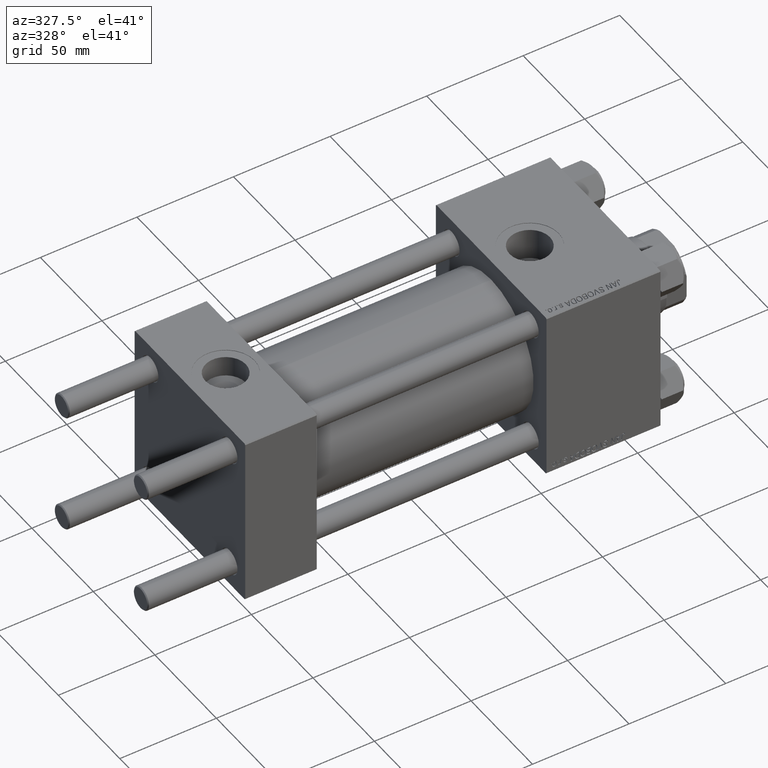
[diagram: clean part render]
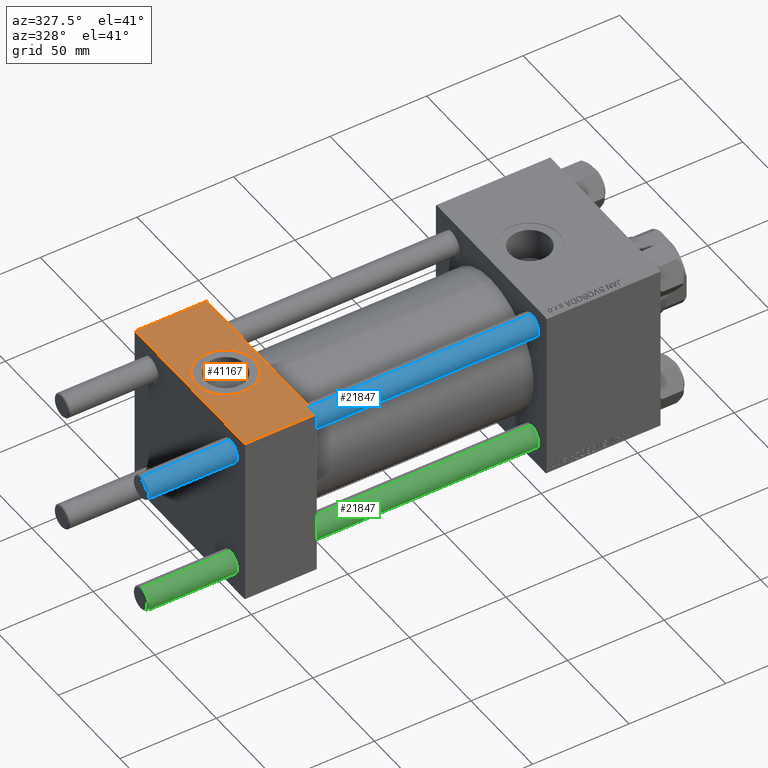
[diagram: same view with three faces highlighted in distinct colors, each labeled with its STEP entity id]
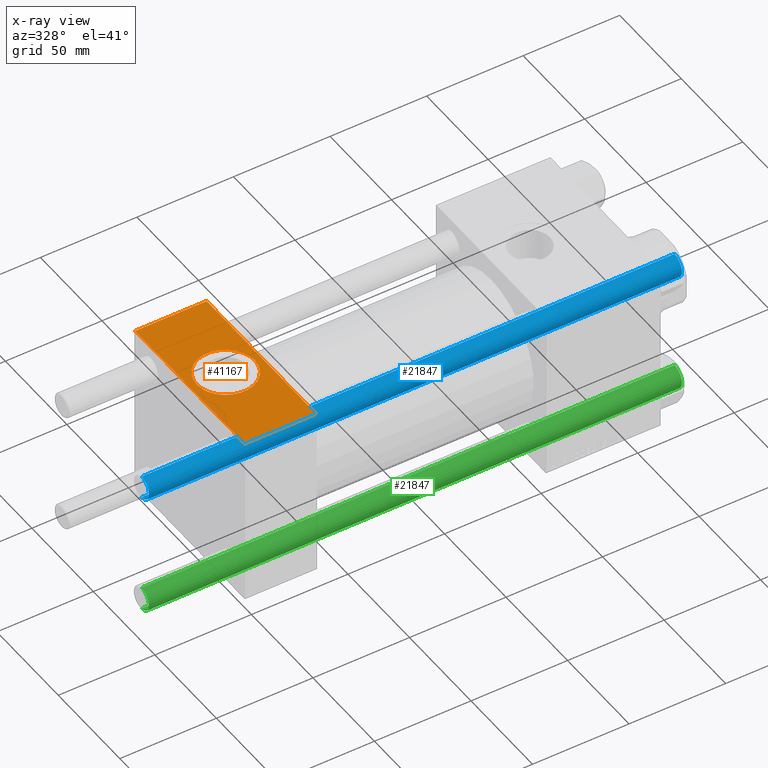
[diagram: x-ray of the same camera — body ghosted, the three highlighted faces saturated]
A machine part, auxiliary view with three faces highlighted in distinct colors.
The next image is the same camera in x-ray (body ghosted, the three faces saturated) — at least one of them is partly hidden behind the body in this view.
Their STEP definitions:

[orange] entity #41167 — the highlighted planar face has unit normal (0, 0, -1).
#144 = AXIS2_PLACEMENT_3D ( 'NONE', #27020, #3296, #18704 ) ;
#2220 = EDGE_LOOP ( 'NONE', ( #30842, #44498 ) ) ;
#2631 = ORIENTED_EDGE ( 'NONE', *, *, #30561, .T. ) ;
#3296 = DIRECTION ( 'NONE',  ( 0.000000000000000000, 0.000000000000000000, 1.000000000000000000 ) ) ;
#7054 = CARTESIAN_POINT ( 'NONE',  ( 18.50000000000000000, -8.673617379884038628E-15, 45.00000000000000711 ) ) ;
#8545 = ORIENTED_EDGE ( 'NONE', *, *, #19542, .T. ) ;
#9850 = DIRECTION ( 'NONE',  ( 1.000000000000000000, 0.000000000000000000, 0.000000000000000000 ) ) ;
#10389 = VERTEX_POINT ( 'NONE', #10992 ) ;
#10497 = CARTESIAN_POINT ( 'NONE',  ( 37.00000000000000000, 44.99999999999998579, 45.00000000000001421 ) ) ;
#10992 = CARTESIAN_POINT ( 'NONE',  ( 3.499999999999997780, -6.836647181163008250E-15, 45.00000000000000711 ) ) ;
#11816 = AXIS2_PLACEMENT_3D ( 'NONE', #7054, #25995, #9850 ) ;
#13613 = VERTEX_POINT ( 'NONE', #48949 ) ;
#13982 = VERTEX_POINT ( 'NONE', #26641 ) ;
#14683 = DIRECTION ( 'NONE',  ( 0.000000000000000000, -1.000000000000000000, -1.541976423090495387E-16 ) ) ;
#15454 = LINE ( 'NONE', #49820, #15876 ) ;
#15726 = PLANE ( 'NONE',  #31050 ) ;
#15876 = VECTOR ( 'NONE', #38929, 1000.000000000000000 ) ;
#16370 = CARTESIAN_POINT ( 'NONE',  ( 33.50000000000000000, -8.673617379884038628E-15, 45.00000000000000711 ) ) ;
#18286 = CARTESIAN_POINT ( 'NONE',  ( 37.00000000000000000, 44.49999999999998579, 45.00000000000001421 ) ) ;
#18704 = DIRECTION ( 'NONE',  ( 1.000000000000000000, 0.000000000000000000, 0.000000000000000000 ) ) ;
#19542 = EDGE_CURVE ( 'NONE', #13982, #13613, #22530, .T. ) ;
#19895 = EDGE_CURVE ( 'NONE', #10389, #38261, #29538, .T. ) ;
#21148 = CARTESIAN_POINT ( 'NONE',  ( 37.00000000000000000, -44.49999999999995737, 45.00000000000000000 ) ) ;
#22236 = CARTESIAN_POINT ( 'NONE',  ( 37.00000000000000000, 44.99999999999998579, 45.00000000000001421 ) ) ;
#22530 = LINE ( 'NONE', #48803, #31177 ) ;
#22847 = ORIENTED_EDGE ( 'NONE', *, *, #46854, .T. ) ;
#23307 = DIRECTION ( 'NONE',  ( 0.000000000000000000, 1.541976423090495633E-16, -1.000000000000000000 ) ) ;
#25902 = FACE_BOUND ( 'NONE', #2220, .T. ) ;
#25995 = DIRECTION ( 'NONE',  ( 0.000000000000000000, 0.000000000000000000, 1.000000000000000000 ) ) ;
#26641 = CARTESIAN_POINT ( 'NONE',  ( 0.000000000000000000, 44.49999999999998579, 45.00000000000001421 ) ) ;
#27020 = CARTESIAN_POINT ( 'NONE',  ( 18.50000000000000000, -8.673617379884038628E-15, 45.00000000000000711 ) ) ;
#28799 = EDGE_CURVE ( 'NONE', #38261, #10389, #44482, .T. ) ;
#29538 = CIRCLE ( 'NONE', #11816, 15.00000000000000355 ) ;
#29834 = EDGE_LOOP ( 'NONE', ( #8545, #2631, #35833, #22847 ) ) ;
#30179 = LINE ( 'NONE', #42555, #46928 ) ;
#30561 = EDGE_CURVE ( 'NONE', #13613, #42733, #30179, .T. ) ;
#30842 = ORIENTED_EDGE ( 'NONE', *, *, #28799, .F. ) ;
#31050 = AXIS2_PLACEMENT_3D ( 'NONE', #10497, #23307, #42744 ) ;
#31177 = VECTOR ( 'NONE', #14683, 1000.000000000000000 ) ;
#35833 = ORIENTED_EDGE ( 'NONE', *, *, #47253, .F. ) ;
#37637 = DIRECTION ( 'NONE',  ( 0.000000000000000000, -1.000000000000000000, -1.541976423090495387E-16 ) ) ;
#38261 = VERTEX_POINT ( 'NONE', #16370 ) ;
#38929 = DIRECTION ( 'NONE',  ( -1.000000000000000000, 0.000000000000000000, 0.000000000000000000 ) ) ;
#41167 = ADVANCED_FACE ( 'NONE', ( #25902, #49400 ), #15726, .F. ) ;
#41421 = LINE ( 'NONE', #22236, #47364 ) ;
#42555 = CARTESIAN_POINT ( 'NONE',  ( 37.00000000000000000, -44.49999999999998579, 45.00000000000000000 ) ) ;
#42733 = VERTEX_POINT ( 'NONE', #21148 ) ;
#42744 = DIRECTION ( 'NONE',  ( 0.000000000000000000, 1.000000000000000000, 1.541976423090495633E-16 ) ) ;
#44482 = CIRCLE ( 'NONE', #144, 15.00000000000000355 ) ;
#44498 = ORIENTED_EDGE ( 'NONE', *, *, #19895, .F. ) ;
#44771 = VERTEX_POINT ( 'NONE', #18286 ) ;
#46596 = DIRECTION ( 'NONE',  ( 1.000000000000000000, 0.000000000000000000, 0.000000000000000000 ) ) ;
#46854 = EDGE_CURVE ( 'NONE', #44771, #13982, #15454, .T. ) ;
#46928 = VECTOR ( 'NONE', #46596, 1000.000000000000000 ) ;
#47253 = EDGE_CURVE ( 'NONE', #44771, #42733, #41421, .T. ) ;
#47364 = VECTOR ( 'NONE', #37637, 1000.000000000000000 ) ;
#48803 = CARTESIAN_POINT ( 'NONE',  ( 0.000000000000000000, 44.99999999999998579, 45.00000000000001421 ) ) ;
#48949 = CARTESIAN_POINT ( 'NONE',  ( 0.000000000000000000, -44.49999999999995737, 45.00000000000000000 ) ) ;
#49400 = FACE_OUTER_BOUND ( 'NONE', #29834, .T. ) ;
#49820 = CARTESIAN_POINT ( 'NONE',  ( 0.000000000000000000, 44.49999999999998579, 45.00000000000001421 ) ) ;

[blue] entity #21847 — the highlighted cylindrical surface (edge-blend (fillet) strip) has radius 6 mm, axis along (1, -0, 0).
#93 = ORIENTED_EDGE ( 'NONE', *, *, #9425, .T. ) ;
#851 = CARTESIAN_POINT ( 'NONE',  ( -6.000000000000000888, 0.000000000000000000, 277.0000000000000000 ) ) ;
#2414 = CARTESIAN_POINT ( 'NONE',  ( 0.000000000000000000, 0.000000000000000000, 0.5000000000000559552 ) ) ;
#3635 = VERTEX_POINT ( 'NONE', #12102 ) ;
#4992 = DIRECTION ( 'NONE',  ( 0.000000000000000000, 0.000000000000000000, -1.000000000000000000 ) ) ;
#5236 = EDGE_LOOP ( 'NONE', ( #93, #28698, #48688, #27755 ) ) ;
#6382 = EDGE_CURVE ( 'NONE', #28541, #3635, #17950, .T. ) ;
#7923 = DIRECTION ( 'NONE',  ( -0.000000000000000000, -0.000000000000000000, -1.000000000000000000 ) ) ;
#8661 = EDGE_CURVE ( 'NONE', #45629, #3635, #12206, .T. ) ;
#8887 = CARTESIAN_POINT ( 'NONE',  ( 6.000000000000000888, 7.347880794884120722E-16, 0.5000000000000559552 ) ) ;
#9425 = EDGE_CURVE ( 'NONE', #45629, #44784, #47886, .T. ) ;
#9501 = DIRECTION ( 'NONE',  ( 1.000000000000000000, 0.000000000000000000, 0.000000000000000000 ) ) ;
#9552 = CARTESIAN_POINT ( 'NONE',  ( 0.000000000000000000, 0.000000000000000000, 276.5000000000000000 ) ) ;
#11751 = CARTESIAN_POINT ( 'NONE',  ( 6.000000000000000888, 7.347880794884120722E-16, 277.0000000000000000 ) ) ;
#11978 = FACE_OUTER_BOUND ( 'NONE', #5236, .T. ) ;
#12102 = CARTESIAN_POINT ( 'NONE',  ( -6.000000000000000888, 0.000000000000000000, 0.5000000000000559552 ) ) ;
#12206 = LINE ( 'NONE', #851, #18021 ) ;
#13327 = CARTESIAN_POINT ( 'NONE',  ( -6.000000000000000888, 0.000000000000000000, 276.5000000000000000 ) ) ;
#14759 = CYLINDRICAL_SURFACE ( 'NONE', #40110, 6.000000000000000888 ) ;
#17950 = CIRCLE ( 'NONE', #21985, 6.000000000000000888 ) ;
#18021 = VECTOR ( 'NONE', #7923, 1000.000000000000000 ) ;
#21847 = ADVANCED_FACE ( 'NONE', ( #11978 ), #14759, .T. ) ;
#21985 = AXIS2_PLACEMENT_3D ( 'NONE', #2414, #40795, #9501 ) ;
#26391 = DIRECTION ( 'NONE',  ( -0.000000000000000000, -0.000000000000000000, -1.000000000000000000 ) ) ;
#26899 = DIRECTION ( 'NONE',  ( -0.000000000000000000, -0.000000000000000000, -1.000000000000000000 ) ) ;
#27755 = ORIENTED_EDGE ( 'NONE', *, *, #8661, .F. ) ;
#28541 = VERTEX_POINT ( 'NONE', #8887 ) ;
#28698 = ORIENTED_EDGE ( 'NONE', *, *, #29017, .T. ) ;
#29017 = EDGE_CURVE ( 'NONE', #44784, #28541, #43068, .T. ) ;
#30173 = CARTESIAN_POINT ( 'NONE',  ( 0.000000000000000000, 0.000000000000000000, 277.0000000000000000 ) ) ;
#34175 = AXIS2_PLACEMENT_3D ( 'NONE', #9552, #4992, #43913 ) ;
#36560 = CARTESIAN_POINT ( 'NONE',  ( 6.000000000000000888, 7.347880794884120722E-16, 276.5000000000000000 ) ) ;
#38001 = DIRECTION ( 'NONE',  ( -1.000000000000000000, 0.000000000000000000, 0.000000000000000000 ) ) ;
#40110 = AXIS2_PLACEMENT_3D ( 'NONE', #30173, #26391, #38001 ) ;
#40795 = DIRECTION ( 'NONE',  ( -0.000000000000000000, -0.000000000000000000, 1.000000000000000000 ) ) ;
#43068 = LINE ( 'NONE', #11751, #49308 ) ;
#43913 = DIRECTION ( 'NONE',  ( 1.000000000000000000, 0.000000000000000000, 0.000000000000000000 ) ) ;
#44784 = VERTEX_POINT ( 'NONE', #36560 ) ;
#45629 = VERTEX_POINT ( 'NONE', #13327 ) ;
#47886 = CIRCLE ( 'NONE', #34175, 6.000000000000000888 ) ;
#48688 = ORIENTED_EDGE ( 'NONE', *, *, #6382, .T. ) ;
#49308 = VECTOR ( 'NONE', #26899, 1000.000000000000000 ) ;

[green] entity #21847 — the highlighted cylindrical surface (edge-blend (fillet) strip) has radius 6 mm, axis along (-1, 0, 0).
#93 = ORIENTED_EDGE ( 'NONE', *, *, #9425, .T. ) ;
#851 = CARTESIAN_POINT ( 'NONE',  ( -6.000000000000000888, 0.000000000000000000, 277.0000000000000000 ) ) ;
#2414 = CARTESIAN_POINT ( 'NONE',  ( 0.000000000000000000, 0.000000000000000000, 0.5000000000000559552 ) ) ;
#3635 = VERTEX_POINT ( 'NONE', #12102 ) ;
#4992 = DIRECTION ( 'NONE',  ( 0.000000000000000000, 0.000000000000000000, -1.000000000000000000 ) ) ;
#5236 = EDGE_LOOP ( 'NONE', ( #93, #28698, #48688, #27755 ) ) ;
#6382 = EDGE_CURVE ( 'NONE', #28541, #3635, #17950, .T. ) ;
#7923 = DIRECTION ( 'NONE',  ( -0.000000000000000000, -0.000000000000000000, -1.000000000000000000 ) ) ;
#8661 = EDGE_CURVE ( 'NONE', #45629, #3635, #12206, .T. ) ;
#8887 = CARTESIAN_POINT ( 'NONE',  ( 6.000000000000000888, 7.347880794884120722E-16, 0.5000000000000559552 ) ) ;
#9425 = EDGE_CURVE ( 'NONE', #45629, #44784, #47886, .T. ) ;
#9501 = DIRECTION ( 'NONE',  ( 1.000000000000000000, 0.000000000000000000, 0.000000000000000000 ) ) ;
#9552 = CARTESIAN_POINT ( 'NONE',  ( 0.000000000000000000, 0.000000000000000000, 276.5000000000000000 ) ) ;
#11751 = CARTESIAN_POINT ( 'NONE',  ( 6.000000000000000888, 7.347880794884120722E-16, 277.0000000000000000 ) ) ;
#11978 = FACE_OUTER_BOUND ( 'NONE', #5236, .T. ) ;
#12102 = CARTESIAN_POINT ( 'NONE',  ( -6.000000000000000888, 0.000000000000000000, 0.5000000000000559552 ) ) ;
#12206 = LINE ( 'NONE', #851, #18021 ) ;
#13327 = CARTESIAN_POINT ( 'NONE',  ( -6.000000000000000888, 0.000000000000000000, 276.5000000000000000 ) ) ;
#14759 = CYLINDRICAL_SURFACE ( 'NONE', #40110, 6.000000000000000888 ) ;
#17950 = CIRCLE ( 'NONE', #21985, 6.000000000000000888 ) ;
#18021 = VECTOR ( 'NONE', #7923, 1000.000000000000000 ) ;
#21847 = ADVANCED_FACE ( 'NONE', ( #11978 ), #14759, .T. ) ;
#21985 = AXIS2_PLACEMENT_3D ( 'NONE', #2414, #40795, #9501 ) ;
#26391 = DIRECTION ( 'NONE',  ( -0.000000000000000000, -0.000000000000000000, -1.000000000000000000 ) ) ;
#26899 = DIRECTION ( 'NONE',  ( -0.000000000000000000, -0.000000000000000000, -1.000000000000000000 ) ) ;
#27755 = ORIENTED_EDGE ( 'NONE', *, *, #8661, .F. ) ;
#28541 = VERTEX_POINT ( 'NONE', #8887 ) ;
#28698 = ORIENTED_EDGE ( 'NONE', *, *, #29017, .T. ) ;
#29017 = EDGE_CURVE ( 'NONE', #44784, #28541, #43068, .T. ) ;
#30173 = CARTESIAN_POINT ( 'NONE',  ( 0.000000000000000000, 0.000000000000000000, 277.0000000000000000 ) ) ;
#34175 = AXIS2_PLACEMENT_3D ( 'NONE', #9552, #4992, #43913 ) ;
#36560 = CARTESIAN_POINT ( 'NONE',  ( 6.000000000000000888, 7.347880794884120722E-16, 276.5000000000000000 ) ) ;
#38001 = DIRECTION ( 'NONE',  ( -1.000000000000000000, 0.000000000000000000, 0.000000000000000000 ) ) ;
#40110 = AXIS2_PLACEMENT_3D ( 'NONE', #30173, #26391, #38001 ) ;
#40795 = DIRECTION ( 'NONE',  ( -0.000000000000000000, -0.000000000000000000, 1.000000000000000000 ) ) ;
#43068 = LINE ( 'NONE', #11751, #49308 ) ;
#43913 = DIRECTION ( 'NONE',  ( 1.000000000000000000, 0.000000000000000000, 0.000000000000000000 ) ) ;
#44784 = VERTEX_POINT ( 'NONE', #36560 ) ;
#45629 = VERTEX_POINT ( 'NONE', #13327 ) ;
#47886 = CIRCLE ( 'NONE', #34175, 6.000000000000000888 ) ;
#48688 = ORIENTED_EDGE ( 'NONE', *, *, #6382, .T. ) ;
#49308 = VECTOR ( 'NONE', #26899, 1000.000000000000000 ) ;